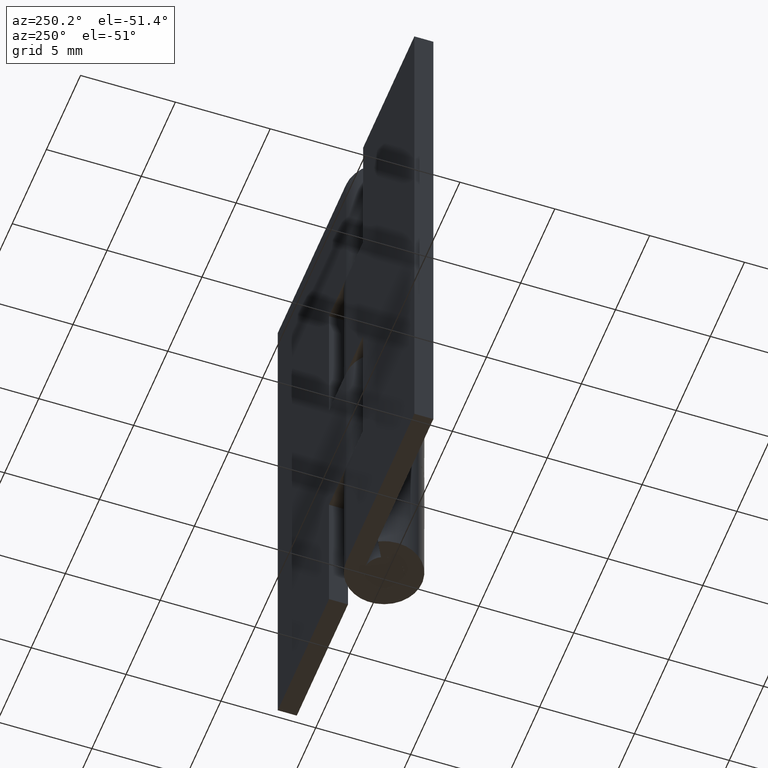
[diagram: clean part render]
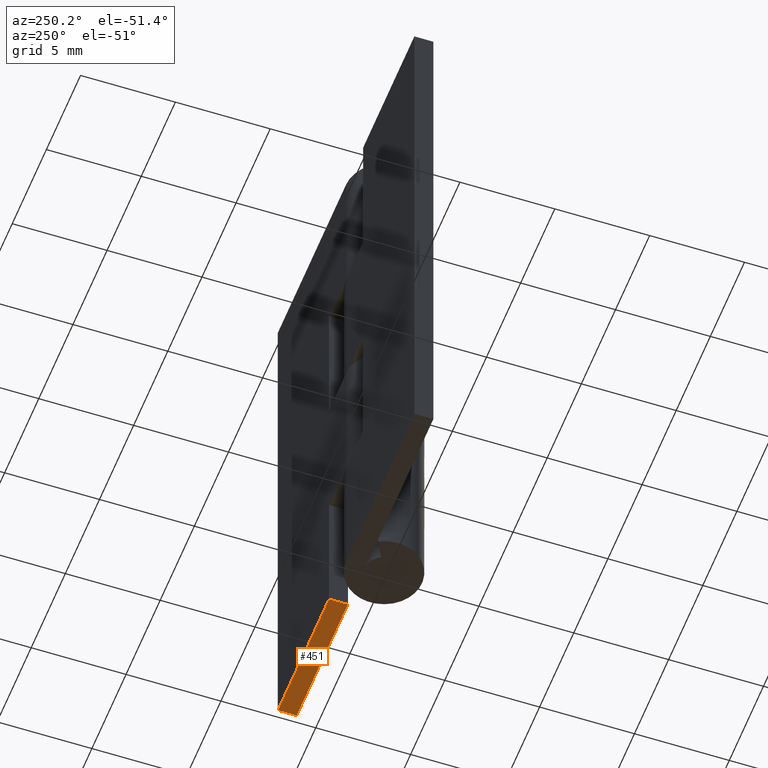
[diagram: same view with one face highlighted and labeled with its STEP entity id]
A machine part, auxiliary view. The second image highlights one B-rep face of the part: STEP entity #451.
In plain terms, the highlighted face is a freeform B-spline surface patch.
Its self-contained STEP definition (entity closure, byte-faithful):
#234=CARTESIAN_POINT('',(2.500000000000000,2.0,0.0));
#235=VERTEX_POINT('',#234);
#241=CARTESIAN_POINT('',(2.500000000000000,1.0,0.0));
#242=VERTEX_POINT('',#241);
#243=CARTESIAN_POINT('',(2.500000000000000,1.0,0.0));
#244=CARTESIAN_POINT('',(2.500000000000000,2.0,0.0));
#245=QUASI_UNIFORM_CURVE('',1,(#243,#244),.UNSPECIFIED.,.F.,.U.);
#246=EDGE_CURVE('',#242,#235,#245,.T.);
#409=CARTESIAN_POINT('',(10.0,2.0,0.0));
#410=VERTEX_POINT('',#409);
#411=CARTESIAN_POINT('',(10.0,1.0,0.0));
#412=VERTEX_POINT('',#411);
#413=CARTESIAN_POINT('',(10.0,2.0,0.0));
#414=CARTESIAN_POINT('',(10.0,1.0,0.0));
#415=QUASI_UNIFORM_CURVE('',1,(#413,#414),.UNSPECIFIED.,.F.,.U.);
#416=EDGE_CURVE('',#410,#412,#415,.T.);
#432=CARTESIAN_POINT('',(2.125375014536455,2.049949998061806,0.0));
#433=CARTESIAN_POINT('',(10.374625186629221,2.049949998061806,0.0));
#434=CARTESIAN_POINT('',(2.125375014536455,0.950049975116104,0.0));
#435=CARTESIAN_POINT('',(10.374625186629221,0.950049975116104,0.0));
#436=B_SPLINE_SURFACE_WITH_KNOTS('',1,1,((#432,#434),(#433,#435)),.UNSPECIFIED.,.F.,.F.,.U.,(2,2),(2,2),(0.0,8.249250172092767),(0.041708334948495,0.958291687403247),.UNSPECIFIED.);
#437=ORIENTED_EDGE('',*,*,#246,.T.);
#438=CARTESIAN_POINT('',(2.500000000000000,2.0,0.0));
#439=CARTESIAN_POINT('',(10.0,2.0,0.0));
#440=QUASI_UNIFORM_CURVE('',1,(#438,#439),.UNSPECIFIED.,.F.,.U.);
#441=EDGE_CURVE('',#235,#410,#440,.T.);
#442=ORIENTED_EDGE('',*,*,#441,.T.);
#443=ORIENTED_EDGE('',*,*,#416,.T.);
#444=CARTESIAN_POINT('',(10.0,1.0,0.0));
#445=CARTESIAN_POINT('',(2.500000000000000,1.0,0.0));
#446=QUASI_UNIFORM_CURVE('',1,(#444,#445),.UNSPECIFIED.,.F.,.U.);
#447=EDGE_CURVE('',#412,#242,#446,.T.);
#448=ORIENTED_EDGE('',*,*,#447,.T.);
#449=EDGE_LOOP('',(#437,#442,#443,#448));
#450=FACE_OUTER_BOUND('',#449,.T.);
#451=ADVANCED_FACE('',(#450),#436,.T.);